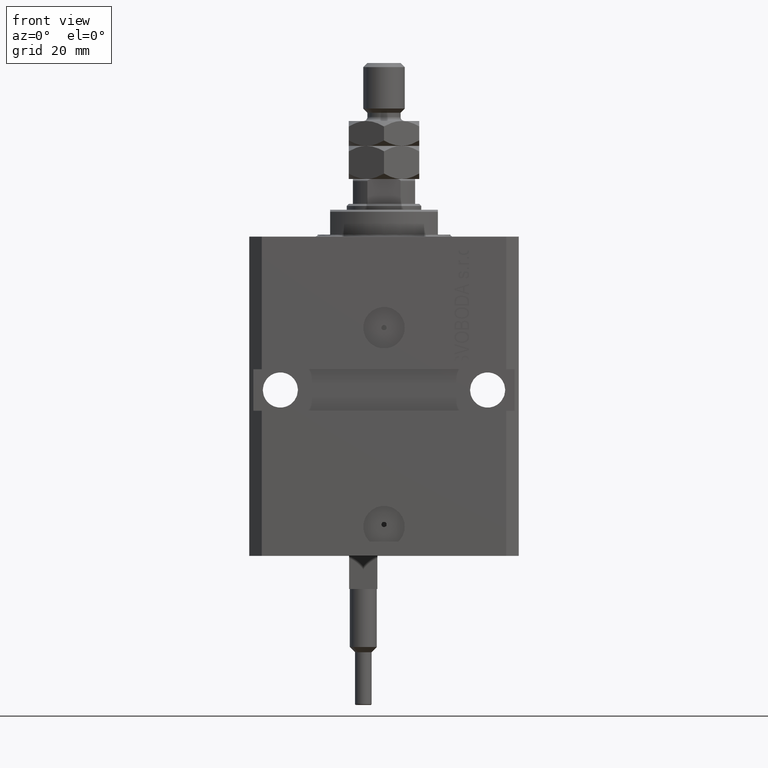
[diagram: clean part render]
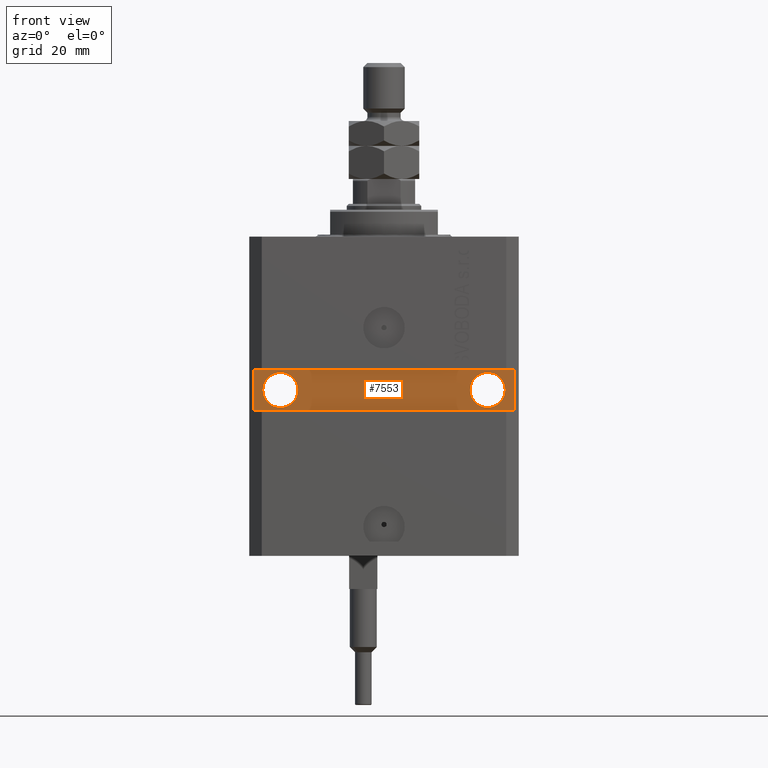
[diagram: same view with one face highlighted and labeled with its STEP entity id]
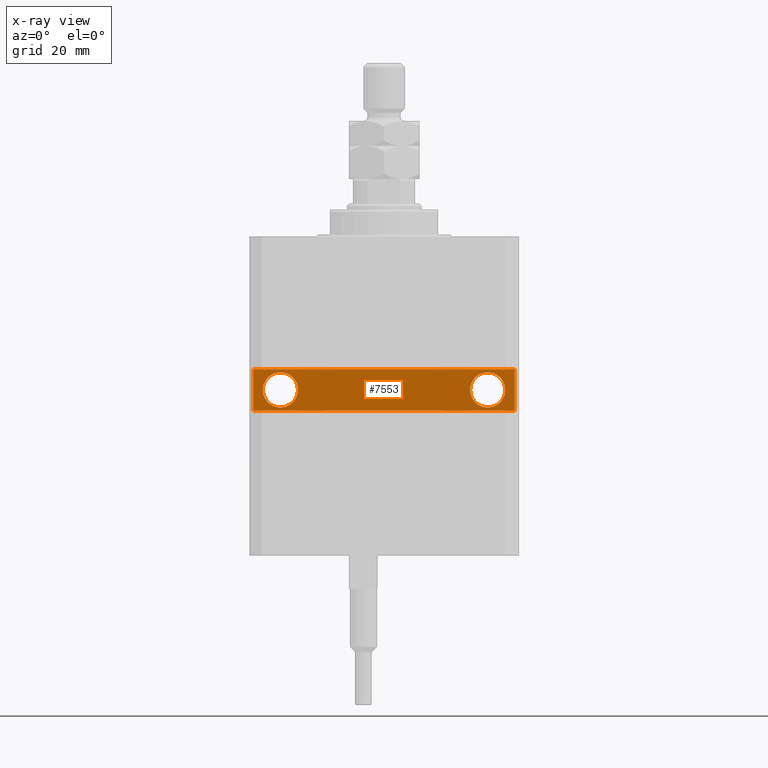
[diagram: x-ray of the same camera — body ghosted, the highlighted face saturated]
A machine part, front view. The second image highlights one B-rep face of the part: STEP entity #7553.
The next image is the same camera in x-ray: the body ghosted, the highlighted face saturated — about 0% of this face is hidden behind the body in this view.
In plain terms, the highlighted planar face has unit normal (0, -1, 0).
Its self-contained STEP definition (entity closure, byte-faithful):
#1526 = CARTESIAN_POINT ( 'NONE',  ( -31.49999999999650413, -20.49999999999950262, -77.00000000000000000 ) ) ;
#2327 = VERTEX_POINT ( 'NONE', #27816 ) ;
#2571 = CARTESIAN_POINT ( 'NONE',  ( -20.75000000000621014, -20.49999999999950262, -37.00000000000000000 ) ) ;
#2885 = DIRECTION ( 'NONE',  ( 1.000000000000000000, 0.000000000000000000, 0.000000000000000000 ) ) ;
#2923 = DIRECTION ( 'NONE',  ( 1.000000000000000000, 0.000000000000000000, 0.000000000000000000 ) ) ;
#3007 = AXIS2_PLACEMENT_3D ( 'NONE', #13830, #45438, #2923 ) ;
#3051 = DIRECTION ( 'NONE',  ( 1.000000000000000000, 0.000000000000000000, 0.000000000000000000 ) ) ;
#3071 = PLANE ( 'NONE',  #26499 ) ;
#4176 = CARTESIAN_POINT ( 'NONE',  ( 29.24999999998905764, -20.49999999999949551, -36.99999999999999289 ) ) ;
#5245 = VECTOR ( 'NONE', #44037, 1000.000000000000000 ) ;
#6353 = CARTESIAN_POINT ( 'NONE',  ( -31.49999999999650413, -20.49999999999949907, -41.99999999999999289 ) ) ;
#7119 = DIRECTION ( 'NONE',  ( 1.000000000000000000, 1.067522139062765303E-16, 0.000000000000000000 ) ) ;
#7553 = ADVANCED_FACE ( 'NONE', ( #41787, #11412, #14717 ), #3071, .T. ) ;
#7853 = CIRCLE ( 'NONE', #3007, 4.249999999989050536 ) ;
#9003 = AXIS2_PLACEMENT_3D ( 'NONE', #10257, #25934, #21894 ) ;
#9137 = EDGE_LOOP ( 'NONE', ( #9731, #12278 ) ) ;
#9731 = ORIENTED_EDGE ( 'NONE', *, *, #31455, .F. ) ;
#10257 = CARTESIAN_POINT ( 'NONE',  ( -24.99999999999999289, -20.49999999999950262, -37.00000000000000000 ) ) ;
#11044 = EDGE_LOOP ( 'NONE', ( #17081, #30293, #32792, #16631 ) ) ;
#11402 = CARTESIAN_POINT ( 'NONE',  ( -31.49999999999650413, -20.49999999999950262, -32.00000000000000000 ) ) ;
#11412 = FACE_BOUND ( 'NONE', #45862, .T. ) ;
#11509 = CARTESIAN_POINT ( 'NONE',  ( 32.49999999999650413, -20.49999999999949196, -32.00000000000000711 ) ) ;
#11826 = CARTESIAN_POINT ( 'NONE',  ( 31.49999999999651124, -20.49999999999949551, -77.00000000000000000 ) ) ;
#12214 = CIRCLE ( 'NONE', #40512, 4.249999999993782751 ) ;
#12278 = ORIENTED_EDGE ( 'NONE', *, *, #41257, .F. ) ;
#12894 = ORIENTED_EDGE ( 'NONE', *, *, #48084, .F. ) ;
#13058 = CIRCLE ( 'NONE', #9003, 4.249999999993782751 ) ;
#13830 = CARTESIAN_POINT ( 'NONE',  ( 25.00000000000000711, -20.49999999999949551, -36.99999999999999289 ) ) ;
#14717 = FACE_OUTER_BOUND ( 'NONE', #11044, .T. ) ;
#14818 = LINE ( 'NONE', #34544, #22762 ) ;
#15323 = CIRCLE ( 'NONE', #28249, 4.249999999989050536 ) ;
#15505 = VERTEX_POINT ( 'NONE', #44702 ) ;
#15651 = ORIENTED_EDGE ( 'NONE', *, *, #44397, .F. ) ;
#16304 = EDGE_CURVE ( 'NONE', #40248, #2327, #14818, .T. ) ;
#16631 = ORIENTED_EDGE ( 'NONE', *, *, #48694, .F. ) ;
#17081 = ORIENTED_EDGE ( 'NONE', *, *, #23712, .T. ) ;
#17782 = VERTEX_POINT ( 'NONE', #11402 ) ;
#18120 = DIRECTION ( 'NONE',  ( 1.000000000000000000, 1.067522139062765303E-16, 1.067522139062765303E-16 ) ) ;
#20189 = VERTEX_POINT ( 'NONE', #4176 ) ;
#21894 = DIRECTION ( 'NONE',  ( 1.000000000000000000, 0.000000000000000000, 0.000000000000000000 ) ) ;
#22762 = VECTOR ( 'NONE', #18120, 1000.000000000000000 ) ;
#23712 = EDGE_CURVE ( 'NONE', #38838, #17782, #34776, .T. ) ;
#25335 = VECTOR ( 'NONE', #26941, 1000.000000000000000 ) ;
#25934 = DIRECTION ( 'NONE',  ( 1.101411730780568590E-16, -1.000000000000000000, 0.000000000000000000 ) ) ;
#26499 = AXIS2_PLACEMENT_3D ( 'NONE', #37736, #33949, #7119 ) ;
#26749 = EDGE_CURVE ( 'NONE', #40248, #17782, #29092, .T. ) ;
#26941 = DIRECTION ( 'NONE',  ( -1.000000000000000000, -1.067522139062765303E-16, 1.067522139062765303E-16 ) ) ;
#27816 = CARTESIAN_POINT ( 'NONE',  ( 31.49999999999650413, -20.49999999999949196, -41.99999999999998579 ) ) ;
#28249 = AXIS2_PLACEMENT_3D ( 'NONE', #45080, #42514, #3051 ) ;
#29092 = LINE ( 'NONE', #1526, #5245 ) ;
#30293 = ORIENTED_EDGE ( 'NONE', *, *, #26749, .F. ) ;
#30451 = DIRECTION ( 'NONE',  ( 1.101411730780568590E-16, -1.000000000000000000, 0.000000000000000000 ) ) ;
#31455 = EDGE_CURVE ( 'NONE', #20189, #15505, #7853, .T. ) ;
#32792 = ORIENTED_EDGE ( 'NONE', *, *, #16304, .T. ) ;
#33949 = DIRECTION ( 'NONE',  ( 1.067522139062765303E-16, -1.000000000000000000, 0.000000000000000000 ) ) ;
#34544 = CARTESIAN_POINT ( 'NONE',  ( -32.49999999999650413, -20.49999999999949907, -41.99999999999999289 ) ) ;
#34750 = VERTEX_POINT ( 'NONE', #36812 ) ;
#34776 = LINE ( 'NONE', #11509, #25335 ) ;
#35725 = VECTOR ( 'NONE', #46746, 1000.000000000000000 ) ;
#36812 = CARTESIAN_POINT ( 'NONE',  ( -29.24999999999377920, -20.49999999999950262, -37.00000000000000000 ) ) ;
#37736 = CARTESIAN_POINT ( 'NONE',  ( 2.166708070385810581E-15, -20.49999999999949907, 0.000000000000000000 ) ) ;
#38838 = VERTEX_POINT ( 'NONE', #47229 ) ;
#40248 = VERTEX_POINT ( 'NONE', #6353 ) ;
#40512 = AXIS2_PLACEMENT_3D ( 'NONE', #46405, #30451, #2885 ) ;
#41257 = EDGE_CURVE ( 'NONE', #15505, #20189, #15323, .T. ) ;
#41787 = FACE_BOUND ( 'NONE', #9137, .T. ) ;
#42514 = DIRECTION ( 'NONE',  ( 1.394545208792185644E-16, -1.000000000000000000, 1.232595164407830946E-32 ) ) ;
#43434 = VERTEX_POINT ( 'NONE', #2571 ) ;
#44037 = DIRECTION ( 'NONE',  ( 0.000000000000000000, 0.000000000000000000, 1.000000000000000000 ) ) ;
#44397 = EDGE_CURVE ( 'NONE', #43434, #34750, #12214, .T. ) ;
#44702 = CARTESIAN_POINT ( 'NONE',  ( 20.75000000001095657, -20.49999999999949551, -36.99999999999999289 ) ) ;
#45080 = CARTESIAN_POINT ( 'NONE',  ( 25.00000000000000711, -20.49999999999949551, -36.99999999999999289 ) ) ;
#45438 = DIRECTION ( 'NONE',  ( 1.394545208792185644E-16, -1.000000000000000000, 1.232595164407830946E-32 ) ) ;
#45862 = EDGE_LOOP ( 'NONE', ( #15651, #12894 ) ) ;
#46405 = CARTESIAN_POINT ( 'NONE',  ( -24.99999999999999289, -20.49999999999950262, -37.00000000000000000 ) ) ;
#46499 = LINE ( 'NONE', #11826, #35725 ) ;
#46746 = DIRECTION ( 'NONE',  ( 0.000000000000000000, 0.000000000000000000, -1.000000000000000000 ) ) ;
#47229 = CARTESIAN_POINT ( 'NONE',  ( 31.49999999999651124, -20.49999999999949196, -32.00000000000000711 ) ) ;
#48084 = EDGE_CURVE ( 'NONE', #34750, #43434, #13058, .T. ) ;
#48694 = EDGE_CURVE ( 'NONE', #38838, #2327, #46499, .T. ) ;